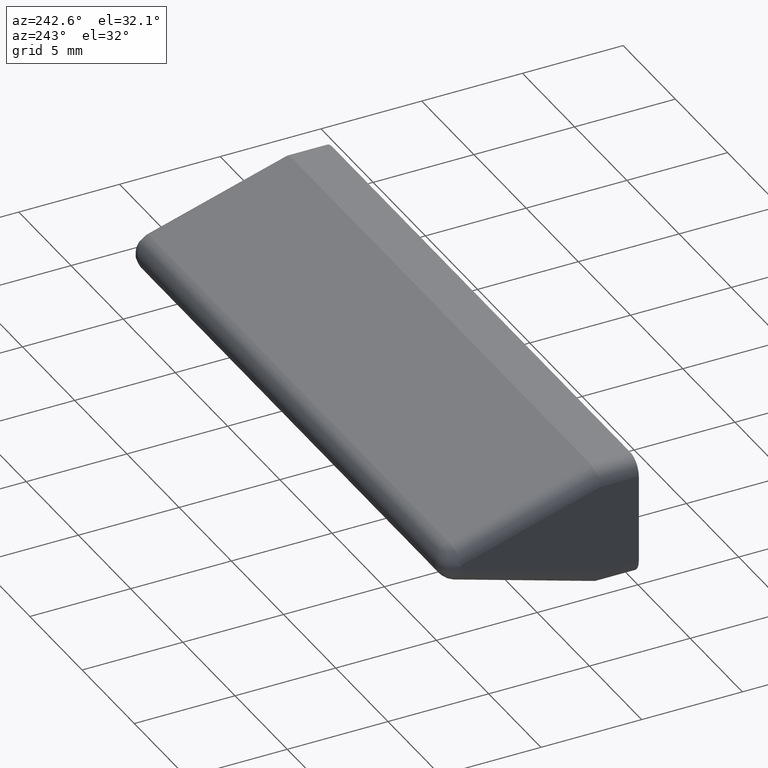
[diagram: clean part render]
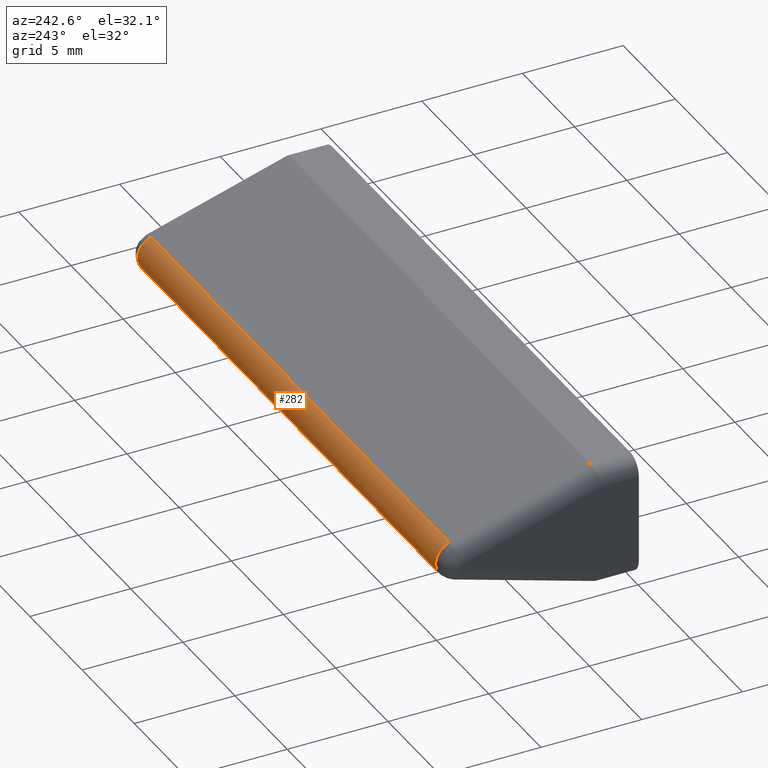
[diagram: same view with one face highlighted and labeled with its STEP entity id]
A machine part, auxiliary view. The second image highlights one B-rep face of the part: STEP entity #282.
In plain terms, the highlighted cylindrical surface (edge-blend (fillet) strip) has radius 0.94 mm, axis along (1, 0, 0).
Its self-contained STEP definition (entity closure, byte-faithful):
#29=FACE_OUTER_BOUND('',#47,.T.);
#47=EDGE_LOOP('',(#208,#209,#210,#211));
#68=CIRCLE('',#326,0.94);
#70=CIRCLE('',#331,0.94);
#84=LINE('',#490,#108);
#85=LINE('',#493,#109);
#108=VECTOR('',#386,10.);
#109=VECTOR('',#389,10.);
#129=VERTEX_POINT('',#452);
#132=VERTEX_POINT('',#474);
#136=VERTEX_POINT('',#489);
#137=VERTEX_POINT('',#491);
#158=EDGE_CURVE('',#129,#132,#68,.T.);
#164=EDGE_CURVE('',#129,#136,#84,.T.);
#165=EDGE_CURVE('',#137,#136,#70,.T.);
#166=EDGE_CURVE('',#132,#137,#85,.T.);
#208=ORIENTED_EDGE('',*,*,#158,.F.);
#209=ORIENTED_EDGE('',*,*,#164,.T.);
#210=ORIENTED_EDGE('',*,*,#165,.F.);
#211=ORIENTED_EDGE('',*,*,#166,.F.);
#272=CYLINDRICAL_SURFACE('',#330,0.94);
#282=ADVANCED_FACE('',(#29),#272,.T.);
#326=AXIS2_PLACEMENT_3D('',#478,#372,#373);
#330=AXIS2_PLACEMENT_3D('',#488,#384,#385);
#331=AXIS2_PLACEMENT_3D('',#492,#387,#388);
#372=DIRECTION('center_axis',(-1.,0.,0.));
#373=DIRECTION('ref_axis',(0.,1.,6.6436218228899E-16));
#384=DIRECTION('center_axis',(1.,0.,0.));
#385=DIRECTION('ref_axis',(0.,0.287680417086198,-0.957726462840571));
#386=DIRECTION('',(1.,0.,0.));
#387=DIRECTION('center_axis',(1.,0.,0.));
#388=DIRECTION('ref_axis',(0.,1.,6.6436218228899E-16));
#389=DIRECTION('',(1.,0.,0.));
#452=CARTESIAN_POINT('',(-14.28,9.00030483173816,0.900262875070134));
#474=CARTESIAN_POINT('',(-14.28,9.00030483173816,-0.900262875070134));
#478=CARTESIAN_POINT('Origin',(-14.28,8.72988523967713,0.));
#488=CARTESIAN_POINT('Origin',(0.,8.72988523967713,0.));
#489=CARTESIAN_POINT('',(14.28,9.00030483173816,0.900262875070134));
#490=CARTESIAN_POINT('',(0.,9.00030483173816,0.900262875070134));
#491=CARTESIAN_POINT('',(14.28,9.00030483173816,-0.900262875070134));
#492=CARTESIAN_POINT('Origin',(14.28,8.72988523967713,0.));
#493=CARTESIAN_POINT('',(0.,9.00030483173816,-0.900262875070134));